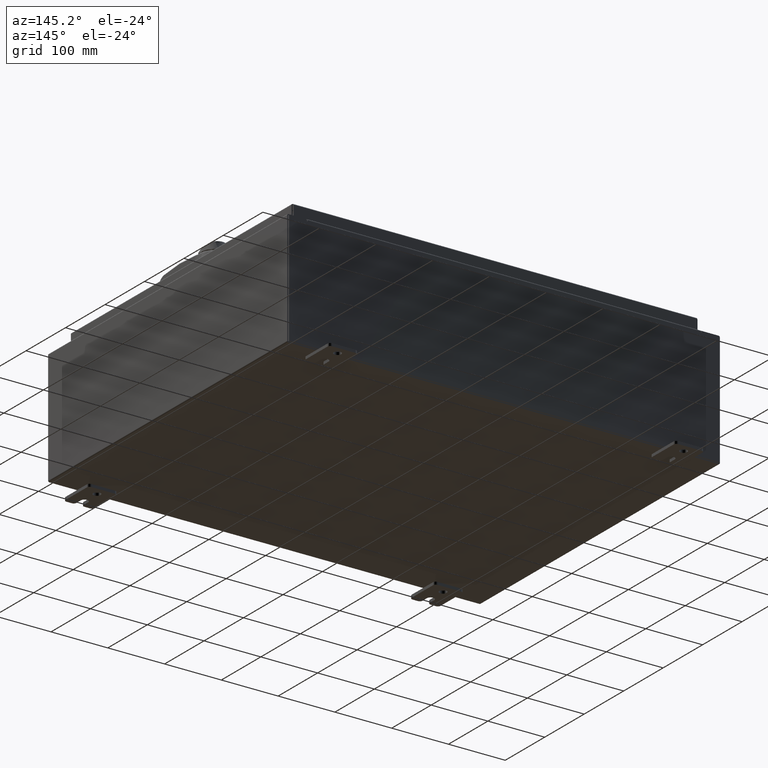
[diagram: clean part render]
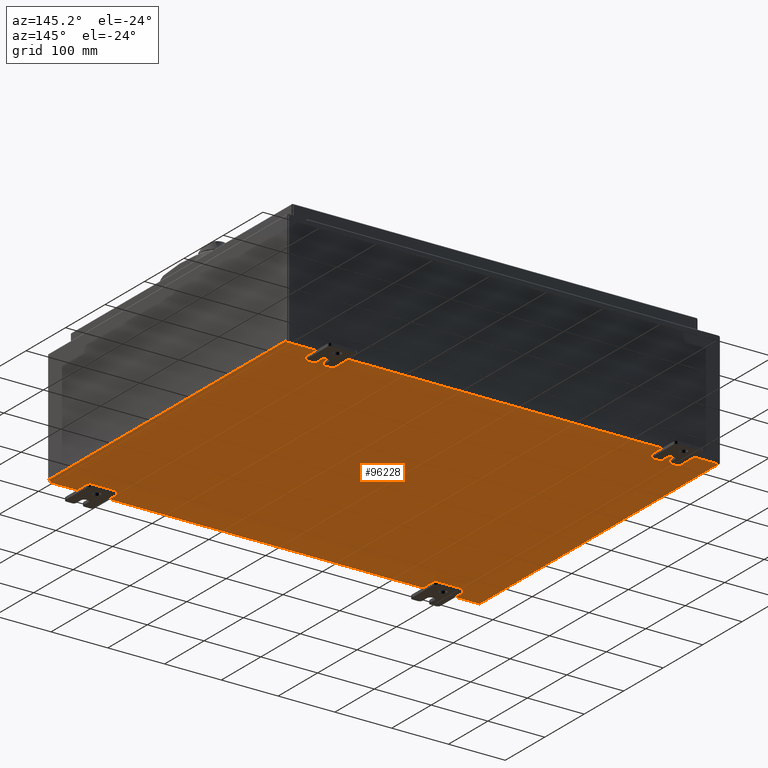
[diagram: same view with one face highlighted and labeled with its STEP entity id]
A machine part, auxiliary view. The second image highlights one B-rep face of the part: STEP entity #96228.
In plain terms, the highlighted planar face has unit normal (0, 0, -1).
Its self-contained STEP definition (entity closure, byte-faithful):
#425 = ORIENTED_EDGE ( 'NONE', *, *, #77003, .T. ) ;
#788 = ORIENTED_EDGE ( 'NONE', *, *, #56244, .T. ) ;
#2302 = CARTESIAN_POINT ( 'NONE',  ( -14.91230000000000000, -11.92530000000000000, -0.07469999999999994700 ) ) ;
#4878 = DIRECTION ( 'NONE',  ( -0.0000000000000000000, 1.000000000000000000, -0.0000000000000000000 ) ) ;
#5954 = VECTOR ( 'NONE', #4878, 39.37007874015748100 ) ;
#7863 = DIRECTION ( 'NONE',  ( -1.000000000000000000, 0.0000000000000000000, -0.0000000000000000000 ) ) ;
#26971 = VERTEX_POINT ( 'NONE', #100968 ) ;
#27128 = CARTESIAN_POINT ( 'NONE',  ( 14.91230000000000000, 11.92529999999999600, -0.07469999999999994700 ) ) ;
#29709 = VECTOR ( 'NONE', #64054, 39.37007874015748100 ) ;
#31524 = VECTOR ( 'NONE', #96675, 39.37007874015748100 ) ;
#33587 = CARTESIAN_POINT ( 'NONE',  ( 0.0000000000000000000, 0.0000000000000000000, -0.07470000000000000300 ) ) ;
#43516 = ORIENTED_EDGE ( 'NONE', *, *, #48018, .F. ) ;
#48018 = EDGE_CURVE ( 'NONE', #58972, #90267, #75839, .T. ) ;
#52049 = LINE ( 'NONE', #108257, #5954 ) ;
#53757 = FACE_OUTER_BOUND ( 'NONE', #79372, .T. ) ;
#56244 = EDGE_CURVE ( 'NONE', #58972, #26971, #52049, .T. ) ;
#57952 = ORIENTED_EDGE ( 'NONE', *, *, #101278, .F. ) ;
#58972 = VERTEX_POINT ( 'NONE', #2302 ) ;
#59730 = DIRECTION ( 'NONE',  ( 0.0000000000000000000, 0.0000000000000000000, -1.000000000000000000 ) ) ;
#64054 = DIRECTION ( 'NONE',  ( 1.000000000000000000, 0.0000000000000000000, 0.0000000000000000000 ) ) ;
#68103 = PLANE ( 'NONE',  #87466 ) ;
#70964 = CARTESIAN_POINT ( 'NONE',  ( 14.91230000000000000, 11.92529999999999800, -0.07469999999999994700 ) ) ;
#72308 = LINE ( 'NONE', #70964, #31524 ) ;
#75839 = LINE ( 'NONE', #98109, #29709 ) ;
#77003 = EDGE_CURVE ( 'NONE', #83723, #90267, #72308, .T. ) ;
#79372 = EDGE_LOOP ( 'NONE', ( #43516, #788, #57952, #425 ) ) ;
#81556 = DIRECTION ( 'NONE',  ( -1.000000000000000000, -0.0000000000000000000, -0.0000000000000000000 ) ) ;
#83723 = VERTEX_POINT ( 'NONE', #27128 ) ;
#87256 = CARTESIAN_POINT ( 'NONE',  ( 14.91230000000000000, -11.92530000000000400, -0.07470000000000000300 ) ) ;
#87466 = AXIS2_PLACEMENT_3D ( 'NONE', #33587, #59730, #7863 ) ;
#89883 = CARTESIAN_POINT ( 'NONE',  ( -15.00000000000000000, 11.92529999999999800, -0.07470000000000000300 ) ) ;
#90267 = VERTEX_POINT ( 'NONE', #87256 ) ;
#96228 = ADVANCED_FACE ( 'NONE', ( #53757 ), #68103, .T. ) ;
#96675 = DIRECTION ( 'NONE',  ( -0.0000000000000000000, -1.000000000000000000, -0.0000000000000000000 ) ) ;
#98109 = CARTESIAN_POINT ( 'NONE',  ( -15.00000000000000000, -11.92530000000000400, -0.07470000000000000300 ) ) ;
#100968 = CARTESIAN_POINT ( 'NONE',  ( -14.91230000000000000, 11.92529999999999800, -0.07470000000000000300 ) ) ;
#101278 = EDGE_CURVE ( 'NONE', #83723, #26971, #110034, .T. ) ;
#107333 = VECTOR ( 'NONE', #81556, 39.37007874015748100 ) ;
#108257 = CARTESIAN_POINT ( 'NONE',  ( -14.91230000000000000, -11.92530000000000400, -0.07469999999999994700 ) ) ;
#110034 = LINE ( 'NONE', #89883, #107333 ) ;